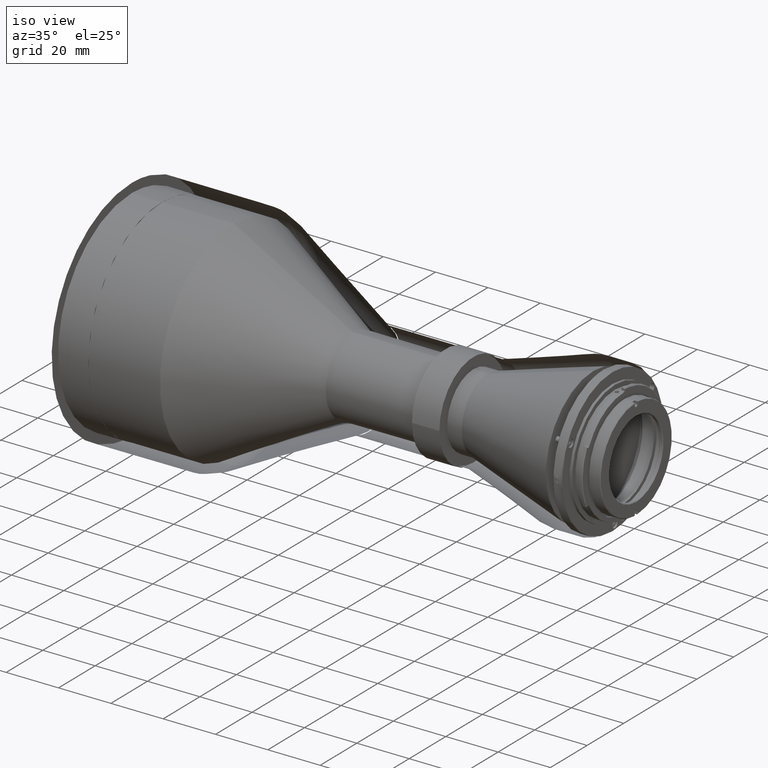
[diagram: clean part render]
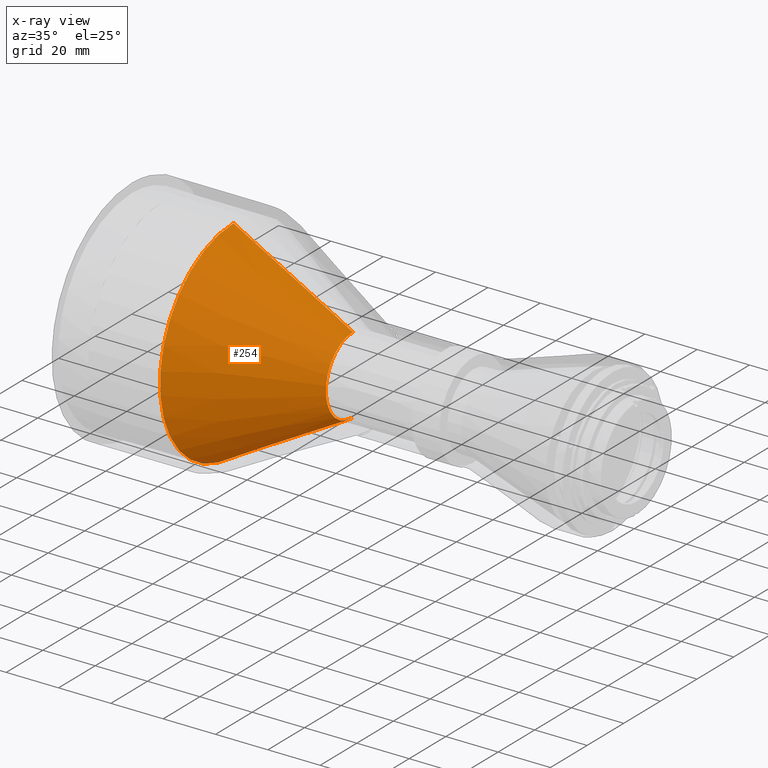
[diagram: x-ray — body ghosted, one internal face saturated and labeled with its STEP entity id]
A machine part, iso view, then the same camera in x-ray: the body is ghosted and one INTERNAL B-rep face — a face not visible from any outside direction — is saturated and labeled: STEP entity #254.
In plain terms, the highlighted conical surface has half-angle 29.052 deg.
Its self-contained STEP definition (entity closure, byte-faithful):
#25 = VERTEX_POINT ( 'NONE', #781 ) ;
#99 = ORIENTED_EDGE ( 'NONE', *, *, #3613, .F. ) ;
#254 = ADVANCED_FACE ( 'NONE', ( #6264 ), #2364, .T. ) ;
#332 = DIRECTION ( 'NONE',  ( 0.000000000000000000, 0.000000000000000000, -1.000000000000000000 ) ) ;
#540 = CARTESIAN_POINT ( 'NONE',  ( 14.85078036565739978, 0.000000000000000000, -164.1357143161629892 ) ) ;
#781 = CARTESIAN_POINT ( 'NONE',  ( 14.85078036565739978, 4.920104348015855102E-15, -123.9600134410908936 ) ) ;
#917 = CARTESIAN_POINT ( 'NONE',  ( 37.67895660264999691, -3.367149565216599093E-15, -136.6408515723830135 ) ) ;
#947 = CIRCLE ( 'NONE', #1097, 14.81402461248790203 ) ;
#1014 = DIRECTION ( 'NONE',  ( -0.8741813677356660151, -5.946879514006872781E-17, 0.4855995637393019648 ) ) ;
#1097 = AXIS2_PLACEMENT_3D ( 'NONE', #1171, #1737, #332 ) ;
#1109 = CARTESIAN_POINT ( 'NONE',  ( 14.85078036565739978, 0.000000000000000000, -204.3114151912351133 ) ) ;
#1140 = CARTESIAN_POINT ( 'NONE',  ( 60.50713283964270062, 0.000000000000000000, -178.9497389286510156 ) ) ;
#1171 = CARTESIAN_POINT ( 'NONE',  ( 60.50713283964270062, 0.000000000000000000, -164.1357143161629892 ) ) ;
#1666 = VECTOR ( 'NONE', #2067, 1000.000000000000114 ) ;
#1737 = DIRECTION ( 'NONE',  ( 1.000000000000000000, 0.000000000000000000, 0.000000000000000000 ) ) ;
#2037 = DIRECTION ( 'NONE',  ( 0.000000000000000000, 0.000000000000000000, -1.000000000000000000 ) ) ;
#2067 = DIRECTION ( 'NONE',  ( -0.8741813677356660151, 0.000000000000000000, -0.4855995637393019648 ) ) ;
#2174 = EDGE_CURVE ( 'NONE', #3671, #6365, #947, .T. ) ;
#2364 = CONICAL_SURFACE ( 'NONE', #3276, 27.49486274377998996, 0.5070488945075773968 ) ;
#2732 = CARTESIAN_POINT ( 'NONE',  ( 60.50713283964270062, -1.814194782417355706E-15, -149.3216897036749913 ) ) ;
#3276 = AXIS2_PLACEMENT_3D ( 'NONE', #4745, #8373, #4039 ) ;
#3613 = EDGE_CURVE ( 'NONE', #6365, #6658, #9278, .T. ) ;
#3632 = EDGE_LOOP ( 'NONE', ( #4991, #8073, #8549, #99 ) ) ;
#3671 = VERTEX_POINT ( 'NONE', #2732 ) ;
#3809 = CIRCLE ( 'NONE', #6371, 40.17570087507210985 ) ;
#4039 = DIRECTION ( 'NONE',  ( 0.000000000000000000, 0.000000000000000000, -1.000000000000000000 ) ) ;
#4159 = CARTESIAN_POINT ( 'NONE',  ( 37.67895660264999691, 0.000000000000000000, -191.6305770599429934 ) ) ;
#4745 = CARTESIAN_POINT ( 'NONE',  ( 37.67895660264999691, 0.000000000000000000, -164.1357143161629892 ) ) ;
#4991 = ORIENTED_EDGE ( 'NONE', *, *, #2174, .F. ) ;
#5009 = VECTOR ( 'NONE', #1014, 1000.000000000000114 ) ;
#6264 = FACE_OUTER_BOUND ( 'NONE', #3632, .T. ) ;
#6365 = VERTEX_POINT ( 'NONE', #1140 ) ;
#6371 = AXIS2_PLACEMENT_3D ( 'NONE', #540, #9111, #2037 ) ;
#6658 = VERTEX_POINT ( 'NONE', #1109 ) ;
#8073 = ORIENTED_EDGE ( 'NONE', *, *, #8935, .T. ) ;
#8086 = LINE ( 'NONE', #917, #5009 ) ;
#8373 = DIRECTION ( 'NONE',  ( -1.000000000000000000, 0.000000000000000000, 0.000000000000000000 ) ) ;
#8390 = EDGE_CURVE ( 'NONE', #25, #6658, #3809, .T. ) ;
#8549 = ORIENTED_EDGE ( 'NONE', *, *, #8390, .T. ) ;
#8935 = EDGE_CURVE ( 'NONE', #3671, #25, #8086, .T. ) ;
#9111 = DIRECTION ( 'NONE',  ( 1.000000000000000000, 0.000000000000000000, 0.000000000000000000 ) ) ;
#9278 = LINE ( 'NONE', #4159, #1666 ) ;